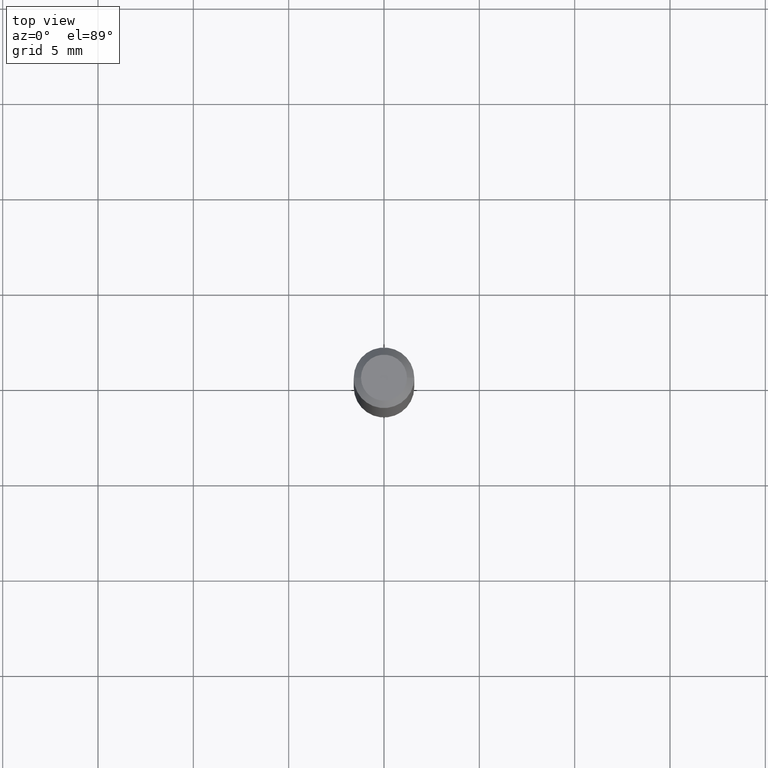
[diagram: clean part render]
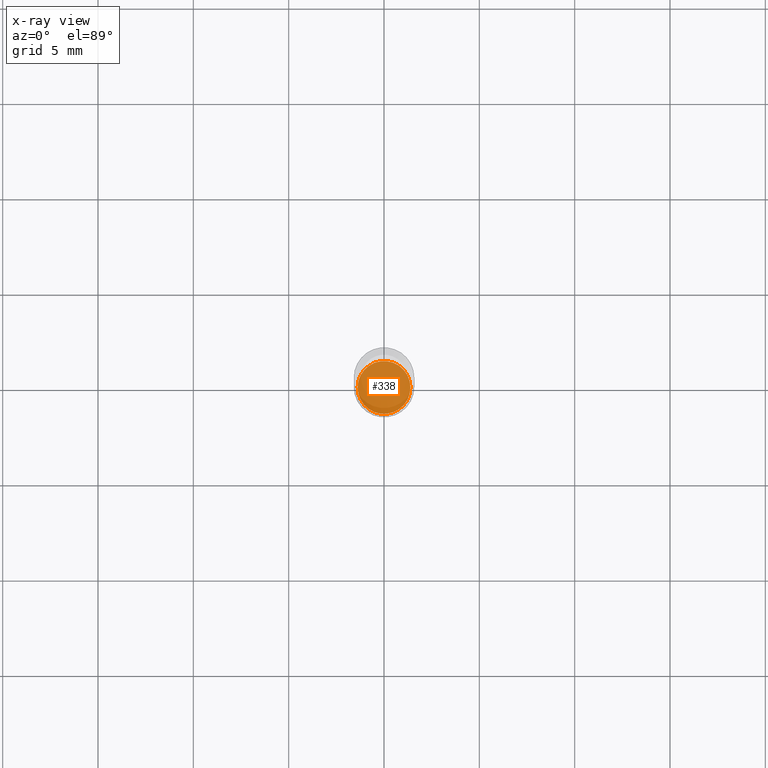
[diagram: x-ray — body ghosted, one internal face saturated and labeled with its STEP entity id]
A machine part, top view, then the same camera in x-ray: the body is ghosted and one INTERNAL B-rep face — a face not visible from any outside direction — is saturated and labeled: STEP entity #338.
In plain terms, the highlighted planar face has unit normal (-0, 0, 1).
Its self-contained STEP definition (entity closure, byte-faithful):
#80 = ORIENTED_EDGE ( 'NONE', *, *, #345, .F. ) ;
#97 = CIRCLE ( 'NONE', #181, 0.05449999999999999983 ) ;
#100 = DIRECTION ( 'NONE',  ( 1.000000000000000000, -6.982962677686270655E-15, 0.000000000000000000 ) ) ;
#110 = CARTESIAN_POINT ( 'NONE',  ( 0.05449999999999999983, -4.465604632380382045E-15, -1.170000000000000151 ) ) ;
#113 = DIRECTION ( 'NONE',  ( 1.000000000000000000, -6.982962677686270655E-15, 0.000000000000000000 ) ) ;
#117 = AXIS2_PLACEMENT_3D ( 'NONE', #230, #375, #444 ) ;
#127 = ORIENTED_EDGE ( 'NONE', *, *, #378, .F. ) ;
#135 = VERTEX_POINT ( 'NONE', #110 ) ;
#149 = CARTESIAN_POINT ( 'NONE',  ( 2.861198503236610065E-29, -4.085033166446480067E-15, -1.170000000000000151 ) ) ;
#169 = CARTESIAN_POINT ( 'NONE',  ( 2.861198503236610065E-29, -4.085033166446480067E-15, -1.170000000000000151 ) ) ;
#181 = AXIS2_PLACEMENT_3D ( 'NONE', #169, #453, #100 ) ;
#189 = CARTESIAN_POINT ( 'NONE',  ( -0.05449999999999999983, -3.695138148283114316E-15, -1.170000000000000151 ) ) ;
#190 = VERTEX_POINT ( 'NONE', #189 ) ;
#230 = CARTESIAN_POINT ( 'NONE',  ( 2.861198503236610065E-29, -4.085033166446480067E-15, -1.170000000000000151 ) ) ;
#237 = EDGE_LOOP ( 'NONE', ( #127, #80 ) ) ;
#257 = CIRCLE ( 'NONE', #293, 0.05449999999999999983 ) ;
#293 = AXIS2_PLACEMENT_3D ( 'NONE', #149, #438, #113 ) ;
#338 = ADVANCED_FACE ( 'NONE', ( #365 ), #410, .F. ) ;
#345 = EDGE_CURVE ( 'NONE', #190, #135, #257, .T. ) ;
#365 = FACE_OUTER_BOUND ( 'NONE', #237, .T. ) ;
#375 = DIRECTION ( 'NONE',  ( -2.438088387897960049E-29, 3.491481338843145188E-15, 1.000000000000000000 ) ) ;
#378 = EDGE_CURVE ( 'NONE', #135, #190, #97, .T. ) ;
#410 = PLANE ( 'NONE',  #117 ) ;
#438 = DIRECTION ( 'NONE',  ( -2.445468806185136597E-29, 3.491481338843145583E-15, 1.000000000000000000 ) ) ;
#444 = DIRECTION ( 'NONE',  ( 1.000000000000000000, -6.982962677686265922E-15, 4.876176775795935793E-29 ) ) ;
#453 = DIRECTION ( 'NONE',  ( -2.445468806185136597E-29, 3.491481338843145583E-15, 1.000000000000000000 ) ) ;